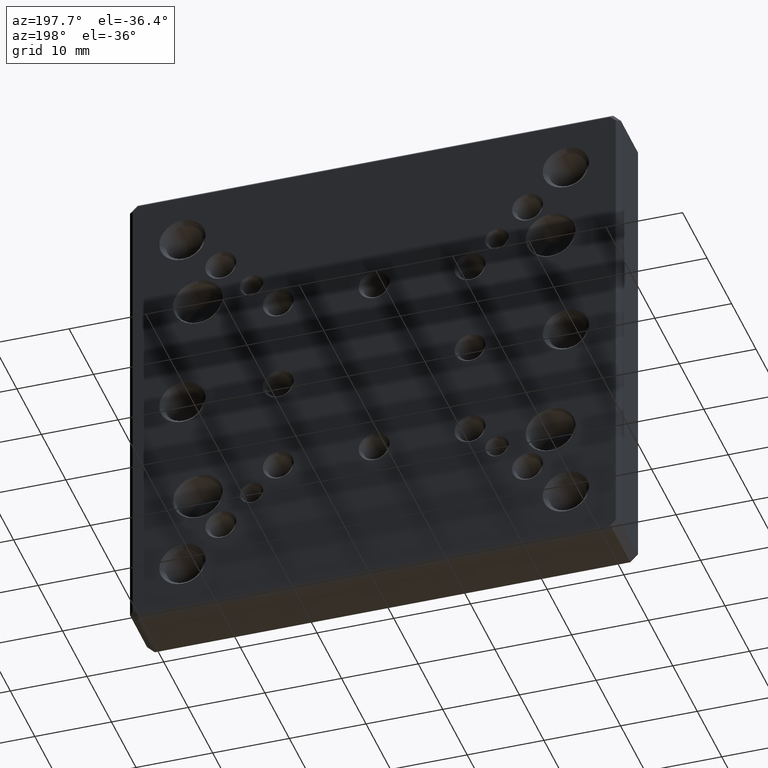
[diagram: clean part render]
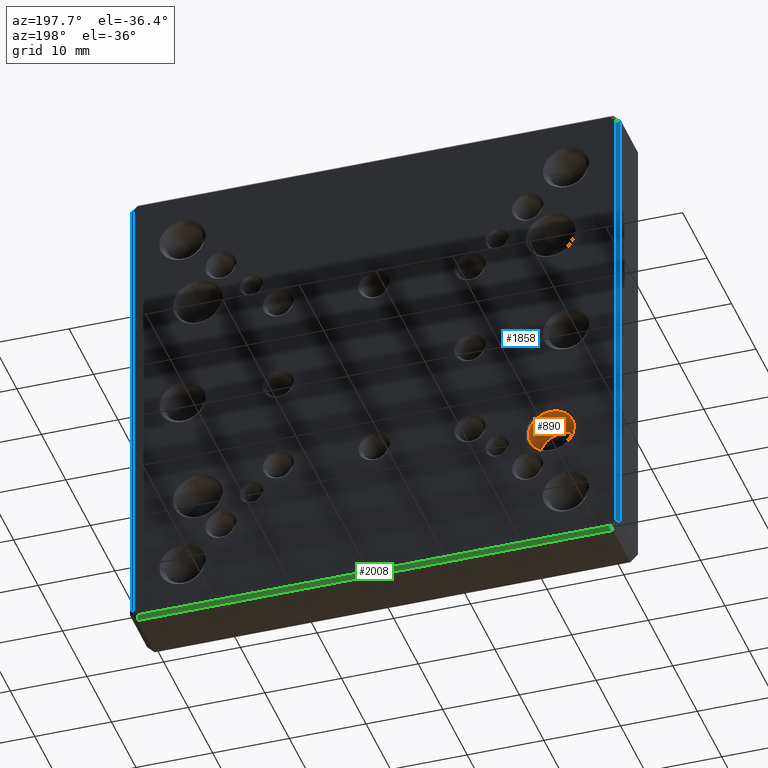
[diagram: same view with three faces highlighted in distinct colors, each labeled with its STEP entity id]
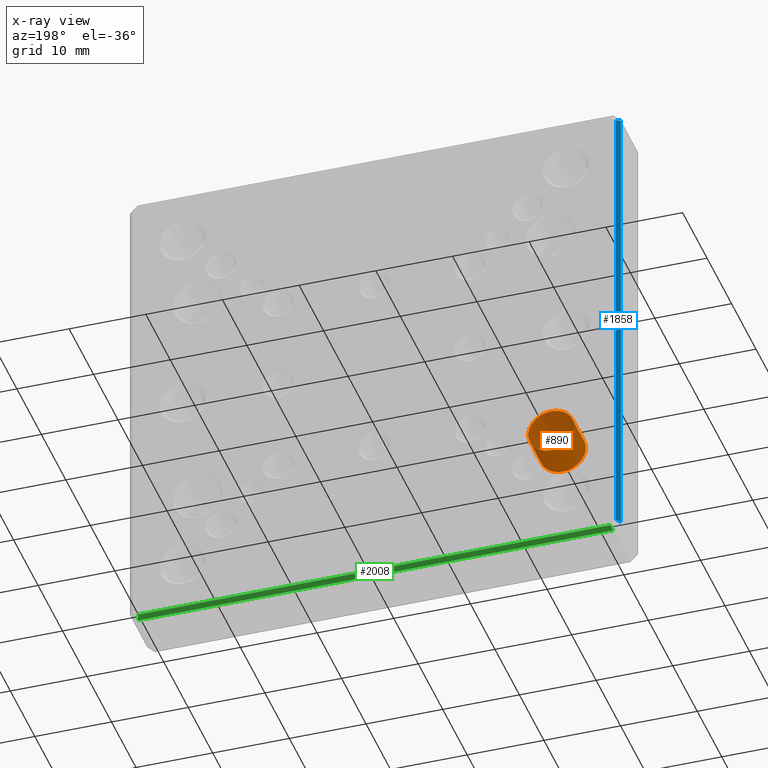
[diagram: x-ray of the same camera — body ghosted, the three highlighted faces saturated]
A machine part, auxiliary view with three faces highlighted in distinct colors.
The next image is the same camera in x-ray (body ghosted, the three faces saturated) — at least one of them is partly hidden behind the body in this view.
Their STEP definitions:

[orange] entity #890 — the highlighted cylindrical surface (bore or boss wall) has radius 3 mm, axis along (-0, 1, -0).
#9 = CARTESIAN_POINT ( 'NONE',  ( -23.00000000000000000, 8.000000000000000000, -14.99999999999999822 ) ) ;
#22 = CIRCLE ( 'NONE', #57, 3.000000000000012879 ) ;
#57 = AXIS2_PLACEMENT_3D ( 'NONE', #1204, #316, #1424 ) ;
#222 = VERTEX_POINT ( 'NONE', #237 ) ;
#237 = CARTESIAN_POINT ( 'NONE',  ( -23.00000000000000000, 7.749999999999992895, -11.99999999999998401 ) ) ;
#316 = DIRECTION ( 'NONE',  ( -0.000000000000000000, 1.000000000000000000, -0.000000000000000000 ) ) ;
#317 = EDGE_CURVE ( 'NONE', #763, #763, #22, .T. ) ;
#372 = DIRECTION ( 'NONE',  ( 0.000000000000000000, 0.000000000000000000, 1.000000000000000000 ) ) ;
#538 = FACE_OUTER_BOUND ( 'NONE', #1849, .T. ) ;
#695 = FACE_OUTER_BOUND ( 'NONE', #2262, .T. ) ;
#700 = CIRCLE ( 'NONE', #2128, 3.000000000000012879 ) ;
#704 = DIRECTION ( 'NONE',  ( 0.000000000000000000, 1.000000000000000000, 0.000000000000000000 ) ) ;
#763 = VERTEX_POINT ( 'NONE', #1278 ) ;
#873 = DIRECTION ( 'NONE',  ( -0.000000000000000000, 1.000000000000000000, -0.000000000000000000 ) ) ;
#890 = ADVANCED_FACE ( 'NONE', ( #538, #695 ), #1806, .F. ) ;
#916 = EDGE_CURVE ( 'NONE', #222, #222, #700, .T. ) ;
#943 = ORIENTED_EDGE ( 'NONE', *, *, #916, .T. ) ;
#1204 = CARTESIAN_POINT ( 'NONE',  ( -23.00000000000000000, 3.000000000000000000, -14.99999999999999822 ) ) ;
#1266 = ORIENTED_EDGE ( 'NONE', *, *, #317, .F. ) ;
#1268 = CARTESIAN_POINT ( 'NONE',  ( -23.00000000000000000, 7.749999999999992895, -14.99999999999999822 ) ) ;
#1278 = CARTESIAN_POINT ( 'NONE',  ( -23.00000000000000000, 3.000000000000000000, -11.99999999999998401 ) ) ;
#1424 = DIRECTION ( 'NONE',  ( 0.000000000000000000, 0.000000000000000000, 1.000000000000000000 ) ) ;
#1595 = DIRECTION ( 'NONE',  ( 0.000000000000000000, 0.000000000000000000, 1.000000000000000000 ) ) ;
#1642 = AXIS2_PLACEMENT_3D ( 'NONE', #9, #873, #1595 ) ;
#1806 = CYLINDRICAL_SURFACE ( 'NONE', #1642, 3.000000000000012879 ) ;
#1849 = EDGE_LOOP ( 'NONE', ( #943 ) ) ;
#2128 = AXIS2_PLACEMENT_3D ( 'NONE', #1268, #704, #372 ) ;
#2262 = EDGE_LOOP ( 'NONE', ( #1266 ) ) ;

[blue] entity #1858 — the highlighted planar face has unit normal (-0.7071, 0.7071, 0).
#79 = EDGE_LOOP ( 'NONE', ( #610, #2227, #1055, #1497 ) ) ;
#107 = EDGE_CURVE ( 'NONE', #1019, #108, #1081, .T. ) ;
#108 = VERTEX_POINT ( 'NONE', #233 ) ;
#190 = CARTESIAN_POINT ( 'NONE',  ( -25.62645362203280897, 13.87354637796719281, 28.35999064983213813 ) ) ;
#233 = CARTESIAN_POINT ( 'NONE',  ( -31.99999999999998579, 7.500000000000013323, 31.00000000000000711 ) ) ;
#252 = CARTESIAN_POINT ( 'NONE',  ( -31.50000000000000000, 8.000000000000000000, 31.00000000000000711 ) ) ;
#288 = LINE ( 'NONE', #252, #1845 ) ;
#389 = LINE ( 'NONE', #1822, #1445 ) ;
#415 = EDGE_CURVE ( 'NONE', #658, #676, #389, .T. ) ;
#501 = EDGE_CURVE ( 'NONE', #108, #676, #1393, .T. ) ;
#565 = EDGE_CURVE ( 'NONE', #658, #1019, #288, .T. ) ;
#584 = VECTOR ( 'NONE', #1916, 1000.000000000000000 ) ;
#610 = ORIENTED_EDGE ( 'NONE', *, *, #415, .T. ) ;
#631 = CARTESIAN_POINT ( 'NONE',  ( -32.00000000000000000, 7.500000000000013323, -30.99999999999997868 ) ) ;
#658 = VERTEX_POINT ( 'NONE', #1546 ) ;
#661 = DIRECTION ( 'NONE',  ( 2.168404344971008868E-16, 0.000000000000000000, 1.000000000000000000 ) ) ;
#676 = VERTEX_POINT ( 'NONE', #631 ) ;
#732 = VECTOR ( 'NONE', #2016, 1000.000000000000114 ) ;
#745 = CARTESIAN_POINT ( 'NONE',  ( -31.50000000000000000, 8.000000000000000000, 30.79289321881346453 ) ) ;
#1019 = VERTEX_POINT ( 'NONE', #745 ) ;
#1024 = FACE_OUTER_BOUND ( 'NONE', #79, .T. ) ;
#1055 = ORIENTED_EDGE ( 'NONE', *, *, #107, .F. ) ;
#1081 = LINE ( 'NONE', #190, #732 ) ;
#1230 = PLANE ( 'NONE',  #2264 ) ;
#1393 = LINE ( 'NONE', #2101, #584 ) ;
#1445 = VECTOR ( 'NONE', #1976, 1000.000000000000114 ) ;
#1497 = ORIENTED_EDGE ( 'NONE', *, *, #565, .F. ) ;
#1546 = CARTESIAN_POINT ( 'NONE',  ( -31.50000000000001421, 8.000000000000000000, -30.79289321881343611 ) ) ;
#1736 = CARTESIAN_POINT ( 'NONE',  ( -31.50000000000000711, 8.000000000000000000, 6.830473686658679512E-15 ) ) ;
#1822 = CARTESIAN_POINT ( 'NONE',  ( -31.40462821508473823, 8.095371784915277757, -30.75338893203379698 ) ) ;
#1845 = VECTOR ( 'NONE', #661, 1000.000000000000000 ) ;
#1858 = ADVANCED_FACE ( 'NONE', ( #1024 ), #1230, .T. ) ;
#1916 = DIRECTION ( 'NONE',  ( -2.168404344971008868E-16, 0.000000000000000000, -1.000000000000000000 ) ) ;
#1943 = DIRECTION ( 'NONE',  ( -2.168404344971008868E-16, 0.000000000000000000, -1.000000000000000000 ) ) ;
#1976 = DIRECTION ( 'NONE',  ( -0.6785983445458464436, -0.6785983445458463326, -0.2810846377148233377 ) ) ;
#2016 = DIRECTION ( 'NONE',  ( -0.6785983445458481089, -0.6785983445458482199, 0.2810846377148148445 ) ) ;
#2101 = CARTESIAN_POINT ( 'NONE',  ( -32.00000000000000000, 7.500000000000013323, -30.99999999999997868 ) ) ;
#2227 = ORIENTED_EDGE ( 'NONE', *, *, #501, .F. ) ;
#2264 = AXIS2_PLACEMENT_3D ( 'NONE', #1736, #2302, #1943 ) ;
#2302 = DIRECTION ( 'NONE',  ( -0.7071067811865475727, 0.7071067811865475727, 1.533293416683374138E-16 ) ) ;

[green] entity #2008 — the highlighted planar face has unit normal (-0, 0.7071, -0.7071).
#11 = CARTESIAN_POINT ( 'NONE',  ( -3.415236843329340545E-15, 8.000000000000000000, -31.50000000000001421 ) ) ;
#25 = DIRECTION ( 'NONE',  ( 1.000000000000000000, 0.000000000000000000, -1.084202172485504434E-16 ) ) ;
#26 = VECTOR ( 'NONE', #355, 1000.000000000000000 ) ;
#78 = EDGE_CURVE ( 'NONE', #1799, #459, #2306, .T. ) ;
#105 = CARTESIAN_POINT ( 'NONE',  ( -28.35999064983186813, 13.87354637796747348, -25.62645362203257804 ) ) ;
#120 = CARTESIAN_POINT ( 'NONE',  ( 31.00000000000000000, 7.500000000000013323, -32.00000000000000000 ) ) ;
#214 = CARTESIAN_POINT ( 'NONE',  ( -30.99999999999998579, 7.500000000000013323, -31.99999999999999289 ) ) ;
#259 = ORIENTED_EDGE ( 'NONE', *, *, #381, .F. ) ;
#355 = DIRECTION ( 'NONE',  ( -1.000000000000000000, 0.000000000000000000, 1.084202172485504434E-16 ) ) ;
#381 = EDGE_CURVE ( 'NONE', #447, #1749, #1611, .T. ) ;
#390 = EDGE_LOOP ( 'NONE', ( #1870, #1888, #502, #259 ) ) ;
#447 = VERTEX_POINT ( 'NONE', #214 ) ;
#459 = VERTEX_POINT ( 'NONE', #578 ) ;
#502 = ORIENTED_EDGE ( 'NONE', *, *, #1628, .F. ) ;
#543 = DIRECTION ( 'NONE',  ( -0.2810846377148260578, 0.6785983445458482199, 0.6785983445458435570 ) ) ;
#566 = FACE_OUTER_BOUND ( 'NONE', #390, .T. ) ;
#578 = CARTESIAN_POINT ( 'NONE',  ( -30.79289321881343611, 8.000000000000000000, -31.50000000000001421 ) ) ;
#949 = VECTOR ( 'NONE', #25, 1000.000000000000000 ) ;
#953 = LINE ( 'NONE', #105, #2252 ) ;
#1076 = DIRECTION ( 'NONE',  ( -7.666467083416897808E-17, 0.7071067811865451302, -0.7071067811865500152 ) ) ;
#1088 = VECTOR ( 'NONE', #543, 1000.000000000000114 ) ;
#1089 = DIRECTION ( 'NONE',  ( 1.000000000000000000, 0.000000000000000000, -1.084202172485504434E-16 ) ) ;
#1471 = CARTESIAN_POINT ( 'NONE',  ( 31.00000000000000000, 7.500000000000013323, -32.00000000000000000 ) ) ;
#1611 = LINE ( 'NONE', #1471, #949 ) ;
#1628 = EDGE_CURVE ( 'NONE', #1749, #1799, #1948, .T. ) ;
#1749 = VERTEX_POINT ( 'NONE', #120 ) ;
#1751 = CARTESIAN_POINT ( 'NONE',  ( -30.99999999999998579, 8.000000000000000000, -31.50000000000001421 ) ) ;
#1799 = VERTEX_POINT ( 'NONE', #2269 ) ;
#1870 = ORIENTED_EDGE ( 'NONE', *, *, #2074, .T. ) ;
#1888 = ORIENTED_EDGE ( 'NONE', *, *, #78, .F. ) ;
#1948 = LINE ( 'NONE', #2192, #1088 ) ;
#1957 = PLANE ( 'NONE',  #1960 ) ;
#1960 = AXIS2_PLACEMENT_3D ( 'NONE', #11, #1076, #1089 ) ;
#2008 = ADVANCED_FACE ( 'NONE', ( #566 ), #1957, .T. ) ;
#2033 = DIRECTION ( 'NONE',  ( 0.2810846377148287223, 0.6785983445458475538, 0.6785983445458428909 ) ) ;
#2074 = EDGE_CURVE ( 'NONE', #447, #459, #953, .T. ) ;
#2192 = CARTESIAN_POINT ( 'NONE',  ( 30.75338893203384316, 8.095371784915213809, -31.40462821508480218 ) ) ;
#2252 = VECTOR ( 'NONE', #2033, 1000.000000000000114 ) ;
#2269 = CARTESIAN_POINT ( 'NONE',  ( 30.79289321881344677, 8.000000000000000000, -31.50000000000002132 ) ) ;
#2306 = LINE ( 'NONE', #1751, #26 ) ;